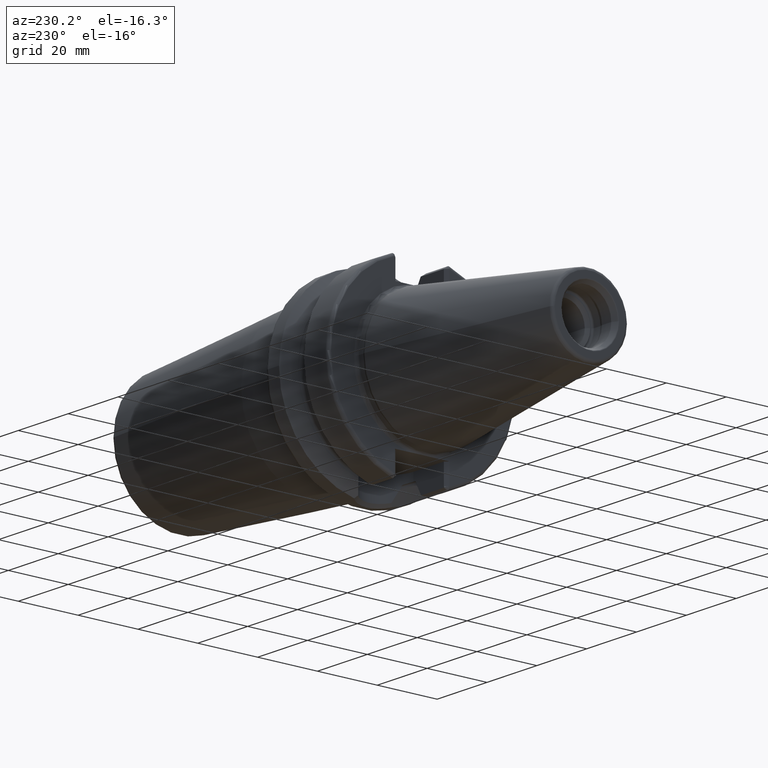
[diagram: clean part render]
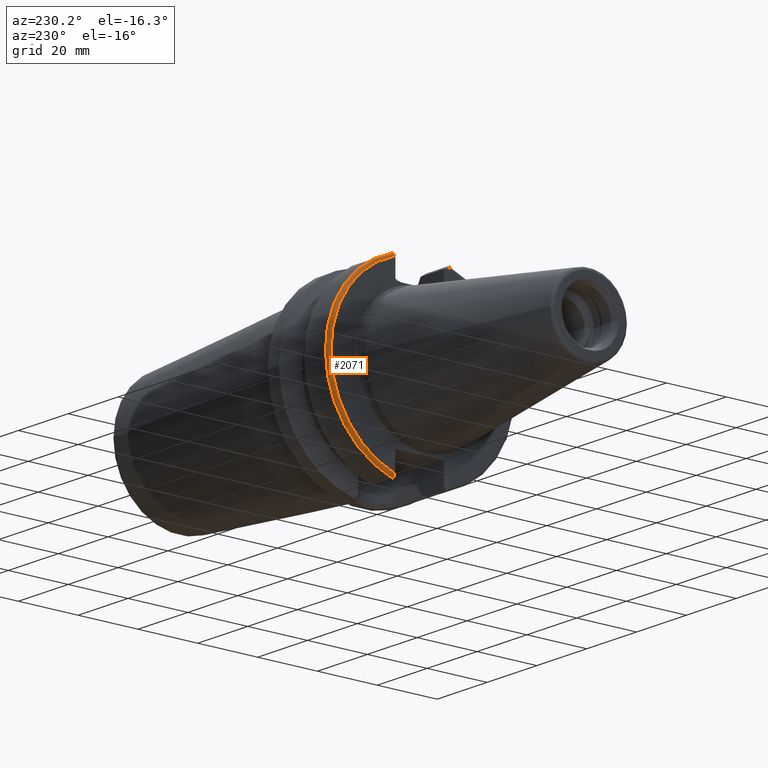
[diagram: same view with one face highlighted and labeled with its STEP entity id]
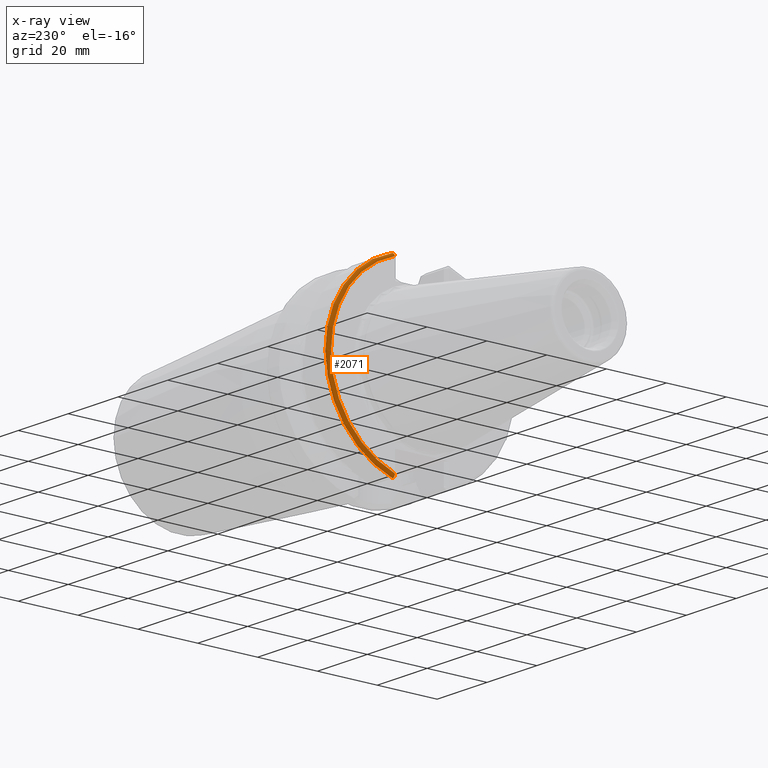
[diagram: x-ray of the same camera — body ghosted, the highlighted face saturated]
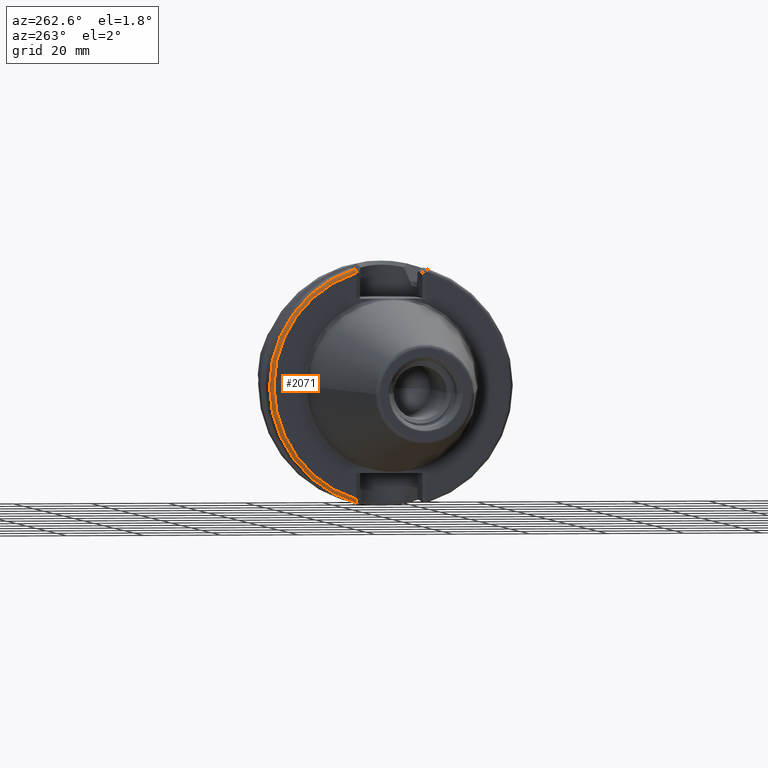
[diagram: same view with one face highlighted and labeled with its STEP entity id]
A machine part, auxiliary view. The second image highlights one B-rep face of the part: STEP entity #2071.
The next image is the same camera in x-ray: the body ghosted, the highlighted face saturated — about 0% of this face is hidden behind the body in this view.
A second angle (auxiliary view) of the same face is appended — the face is thin or edge-on in the first view.
In plain terms, the highlighted toroidal blend (fillet) surface has major radius 30.4875 mm and minor (blend) radius 1 mm.
Its self-contained STEP definition (entity closure, byte-faithful):
#228=CARTESIAN_POINT('',(3.E0,0.E0,0.E0));
#229=DIRECTION('',(-1.E0,0.E0,0.E0));
#230=DIRECTION('',(0.E0,2.983189831898E-1,9.544662300305E-1));
#231=AXIS2_PLACEMENT_3D('',#228,#229,#230);
#576=CARTESIAN_POINT('',(2.999999997734E0,9.052776400559E0,-3.015808496187E1));
#577=CARTESIAN_POINT('',(2.931534903981E0,9.052812497807E0,-3.015807412629E1));
#578=CARTESIAN_POINT('',(2.790930333101E0,9.053893030365E0,-3.014309601841E1));
#579=CARTESIAN_POINT('',(2.577680867074E0,9.059670739939E0,-3.006831316068E1));
#580=CARTESIAN_POINT('',(2.379122961844E0,9.068290399113E0,-2.993980731602E1));
#581=CARTESIAN_POINT('',(2.211396248706E0,9.078496481978E0,-2.976350519345E1));
#582=CARTESIAN_POINT('',(2.087184923784E0,9.087603638745E0,-2.955183251506E1));
#583=CARTESIAN_POINT('',(2.014374036950E0,9.093739351075E0,-2.932192619109E1));
#584=CARTESIAN_POINT('',(1.999985784732E0,9.095112793048E0,-2.917217137670E1));
#585=CARTESIAN_POINT('',(1.999985784732E0,9.094985783206E0,-2.909928820385E1));
#587=CARTESIAN_POINT('',(3.E0,9.095027762304E0,2.909928051092E1));
#588=DIRECTION('',(0.E0,9.544659454175E-1,-2.983198938025E-1));
#589=DIRECTION('',(-1.E0,-4.138911435803E-12,-1.324096388089E-11));
#590=AXIS2_PLACEMENT_3D('',#587,#588,#589);
#592=CARTESIAN_POINT('',(2.E0,0.E0,0.E0));
#593=DIRECTION('',(-1.E0,0.E0,0.E0));
#594=DIRECTION('',(0.E0,2.983190614061E-1,9.544662055839E-1));
#595=AXIS2_PLACEMENT_3D('',#592,#593,#594);
#1358=CARTESIAN_POINT('',(2.E0,9.095027762300E0,2.909928051090E1));
#1359=CARTESIAN_POINT('',(3.E0,9.393347656107E0,3.005374645633E1));
#1360=VERTEX_POINT('',#1358);
#1361=VERTEX_POINT('',#1359);
#1372=CARTESIAN_POINT('',(1.999985784732E0,9.094985783206E0,-2.909928820385E1));
#1374=VERTEX_POINT('',#1372);
#1376=VERTEX_POINT('',#576);
#2058=CARTESIAN_POINT('',(3.E0,0.E0,0.E0));
#2059=DIRECTION('',(1.E0,0.E0,0.E0));
#2060=DIRECTION('',(0.E0,-1.E0,0.E0));
#2061=AXIS2_PLACEMENT_3D('',#2058,#2059,#2060);
#2062=TOROIDAL_SURFACE('',#2061,3.04875E1,1.E0);
#2064=ORIENTED_EDGE('',*,*,#2063,.F.);
#2065=ORIENTED_EDGE('',*,*,#1740,.F.);
#2067=ORIENTED_EDGE('',*,*,#2066,.F.);
#2068=ORIENTED_EDGE('',*,*,#1577,.T.);
#2069=EDGE_LOOP('',(#2064,#2065,#2067,#2068));
#2070=FACE_OUTER_BOUND('',#2069,.F.);
#2071=ADVANCED_FACE('',(#2070),#2062,.T.);
#232=CIRCLE('',#231,3.14875E1);
#586=B_SPLINE_CURVE_WITH_KNOTS('',3,(#576,#577,#578,#579,#580,#581,#582,#583,
#584,#585),.UNSPECIFIED.,.F.,.F.,(4,1,1,1,1,1,1,4),(0.E0,1.428571428571E-1,
2.857142857143E-1,4.285714285714E-1,5.714285714286E-1,7.142857142857E-1,
8.571428571429E-1,1.E0),.UNSPECIFIED.);
#591=CIRCLE('',#590,1.E0);
#596=CIRCLE('',#595,3.04875E1);
#1577=EDGE_CURVE('',#1360,#1374,#596,.T.);
#1740=EDGE_CURVE('',#1361,#1376,#232,.T.);
#2063=EDGE_CURVE('',#1376,#1374,#586,.T.);
#2066=EDGE_CURVE('',#1360,#1361,#591,.T.);